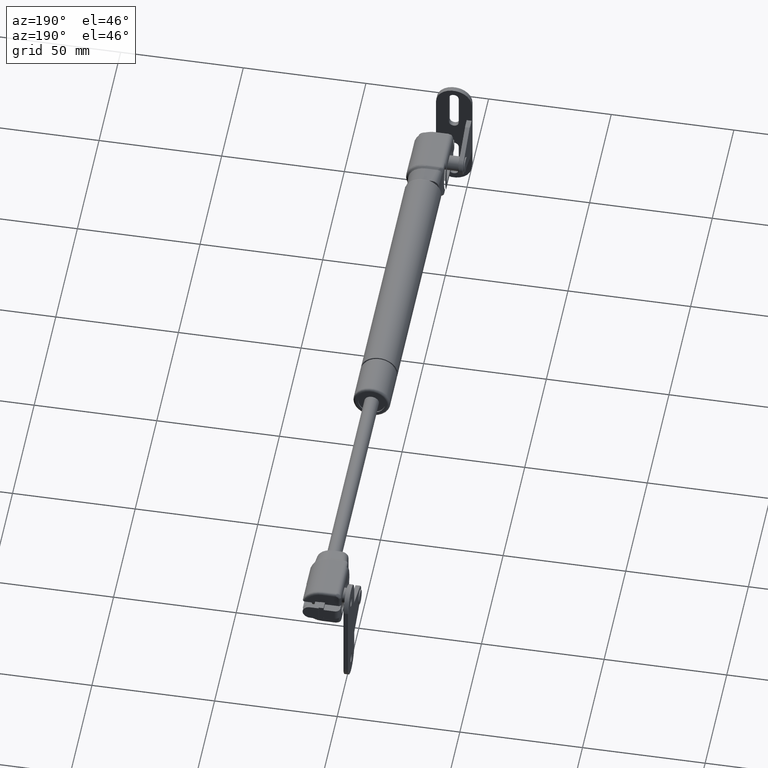
[diagram: clean part render]
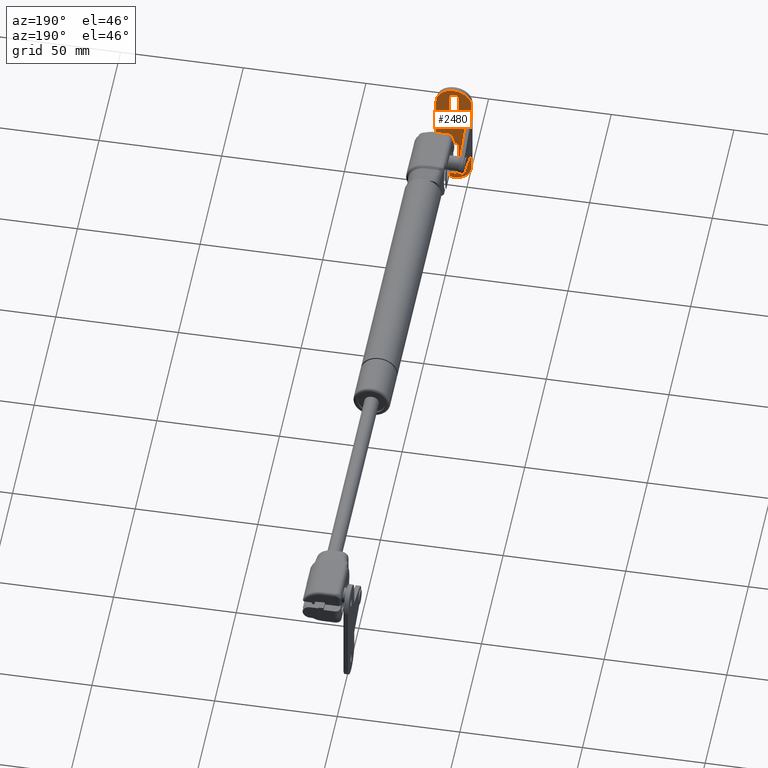
[diagram: same view with one face highlighted and labeled with its STEP entity id]
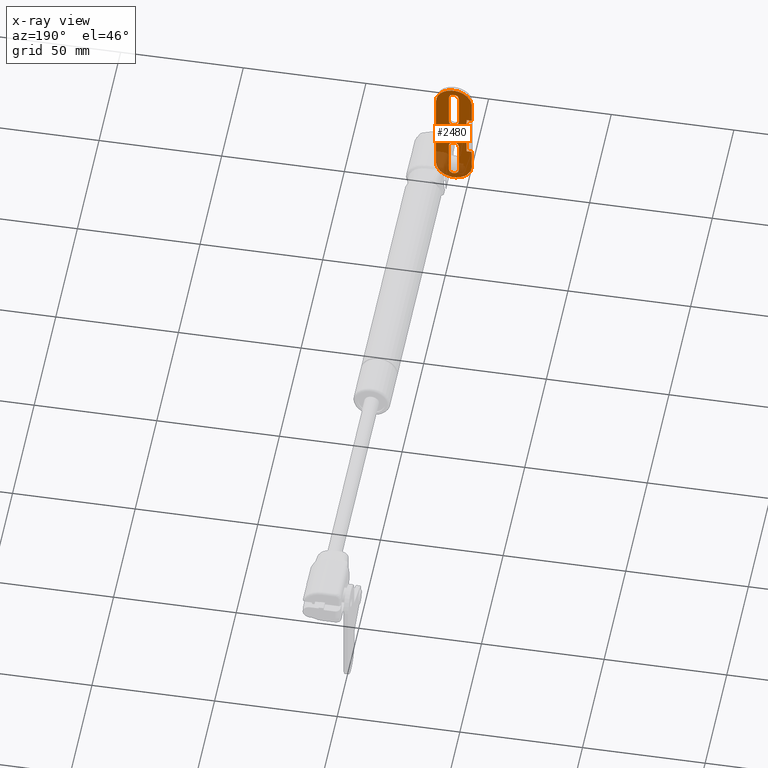
[diagram: x-ray of the same camera — body ghosted, the highlighted face saturated]
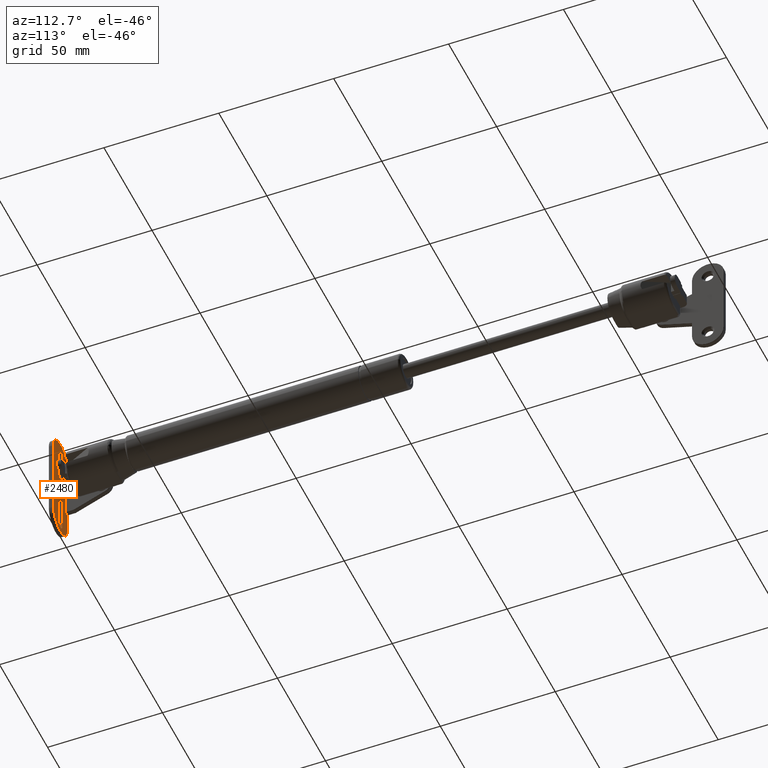
[diagram: same view with one face highlighted and labeled with its STEP entity id]
A machine part, auxiliary view. The second image highlights one B-rep face of the part: STEP entity #2480.
The next image is the same camera in x-ray: the body ghosted, the highlighted face saturated — about 14% of this face is hidden behind the body in this view.
A second angle (auxiliary view) of the same face is appended — the face is thin or edge-on in the first view.
In plain terms, the highlighted planar face has unit normal (0, -1, 0).
Its self-contained STEP definition (entity closure, byte-faithful):
#137=FACE_BOUND('',#424,.T.);
#138=FACE_BOUND('',#425,.T.);
#180=PLANE('',#2664);
#255=FACE_OUTER_BOUND('',#423,.T.);
#423=EDGE_LOOP('',(#1757,#1758,#1759,#1760,#1761,#1762,#1763,#1764));
#424=EDGE_LOOP('',(#1765,#1766,#1767,#1768));
#425=EDGE_LOOP('',(#1769,#1770,#1771,#1772));
#616=LINE('',#3720,#797);
#620=LINE('',#3731,#801);
#624=LINE('',#3744,#805);
#628=LINE('',#3755,#809);
#632=LINE('',#3768,#813);
#637=LINE('',#3783,#818);
#638=LINE('',#3784,#819);
#639=LINE('',#3786,#820);
#640=LINE('',#3788,#821);
#641=LINE('',#3789,#822);
#797=VECTOR('',#2947,13.7);
#801=VECTOR('',#2959,13.7);
#805=VECTOR('',#2971,13.7);
#809=VECTOR('',#2983,13.7);
#813=VECTOR('',#2995,35.5);
#818=VECTOR('',#3010,2.);
#819=VECTOR('',#3011,8.75);
#820=VECTOR('',#3012,8.75);
#821=VECTOR('',#3013,2.);
#822=VECTOR('',#3014,18.);
#976=CIRCLE('',#2641,2.);
#978=CIRCLE('',#2645,2.);
#980=CIRCLE('',#2649,2.);
#982=CIRCLE('',#2653,2.);
#984=CIRCLE('',#2657,7.25);
#986=CIRCLE('',#2661,7.25);
#1112=VERTEX_POINT('',#3710);
#1113=VERTEX_POINT('',#3711);
#1116=VERTEX_POINT('',#3719);
#1118=VERTEX_POINT('',#3725);
#1120=VERTEX_POINT('',#3734);
#1121=VERTEX_POINT('',#3735);
#1124=VERTEX_POINT('',#3743);
#1126=VERTEX_POINT('',#3749);
#1128=VERTEX_POINT('',#3758);
#1129=VERTEX_POINT('',#3759);
#1132=VERTEX_POINT('',#3767);
#1134=VERTEX_POINT('',#3773);
#1136=VERTEX_POINT('',#3781);
#1137=VERTEX_POINT('',#3782);
#1138=VERTEX_POINT('',#3785);
#1139=VERTEX_POINT('',#3787);
#1344=EDGE_CURVE('',#1112,#1113,#976,.T.);
#1348=EDGE_CURVE('',#1116,#1112,#616,.T.);
#1351=EDGE_CURVE('',#1118,#1116,#978,.T.);
#1354=EDGE_CURVE('',#1113,#1118,#620,.T.);
#1356=EDGE_CURVE('',#1120,#1121,#980,.T.);
#1360=EDGE_CURVE('',#1124,#1120,#624,.T.);
#1363=EDGE_CURVE('',#1126,#1124,#982,.T.);
#1366=EDGE_CURVE('',#1121,#1126,#628,.T.);
#1368=EDGE_CURVE('',#1128,#1129,#984,.T.);
#1372=EDGE_CURVE('',#1132,#1128,#632,.T.);
#1375=EDGE_CURVE('',#1134,#1132,#986,.T.);
#1379=EDGE_CURVE('',#1136,#1137,#637,.T.);
#1380=EDGE_CURVE('',#1129,#1137,#638,.T.);
#1381=EDGE_CURVE('',#1138,#1134,#639,.T.);
#1382=EDGE_CURVE('',#1139,#1138,#640,.T.);
#1383=EDGE_CURVE('',#1139,#1136,#641,.T.);
#1757=ORIENTED_EDGE('',*,*,#1379,.T.);
#1758=ORIENTED_EDGE('',*,*,#1380,.F.);
#1759=ORIENTED_EDGE('',*,*,#1368,.F.);
#1760=ORIENTED_EDGE('',*,*,#1372,.F.);
#1761=ORIENTED_EDGE('',*,*,#1375,.F.);
#1762=ORIENTED_EDGE('',*,*,#1381,.F.);
#1763=ORIENTED_EDGE('',*,*,#1382,.F.);
#1764=ORIENTED_EDGE('',*,*,#1383,.T.);
#1765=ORIENTED_EDGE('',*,*,#1344,.T.);
#1766=ORIENTED_EDGE('',*,*,#1354,.T.);
#1767=ORIENTED_EDGE('',*,*,#1351,.T.);
#1768=ORIENTED_EDGE('',*,*,#1348,.T.);
#1769=ORIENTED_EDGE('',*,*,#1356,.T.);
#1770=ORIENTED_EDGE('',*,*,#1366,.T.);
#1771=ORIENTED_EDGE('',*,*,#1363,.T.);
#1772=ORIENTED_EDGE('',*,*,#1360,.T.);
#2480=ADVANCED_FACE('',(#255,#137,#138),#180,.F.);
#2641=AXIS2_PLACEMENT_3D('',#3712,#2939,#2940);
#2645=AXIS2_PLACEMENT_3D('',#3726,#2952,#2953);
#2649=AXIS2_PLACEMENT_3D('',#3736,#2963,#2964);
#2653=AXIS2_PLACEMENT_3D('',#3750,#2976,#2977);
#2657=AXIS2_PLACEMENT_3D('',#3760,#2987,#2988);
#2661=AXIS2_PLACEMENT_3D('',#3774,#3000,#3001);
#2664=AXIS2_PLACEMENT_3D('',#3780,#3008,#3009);
#2939=DIRECTION('center_axis',(1.,0.,0.));
#2940=DIRECTION('ref_axis',(0.,1.,-2.22044604925031E-15));
#2947=DIRECTION('',(0.,-8.10381769799385E-17,-1.));
#2952=DIRECTION('center_axis',(1.,0.,0.));
#2953=DIRECTION('ref_axis',(0.,-1.,0.));
#2959=DIRECTION('',(0.,0.,1.));
#2963=DIRECTION('center_axis',(1.,0.,0.));
#2964=DIRECTION('ref_axis',(0.,1.,0.));
#2971=DIRECTION('',(0.,0.,1.));
#2976=DIRECTION('center_axis',(1.,0.,0.));
#2977=DIRECTION('ref_axis',(0.,-1.,-1.38777878078145E-16));
#2983=DIRECTION('',(0.,8.10381769799384E-17,-1.));
#2987=DIRECTION('center_axis',(1.,0.,0.));
#2988=DIRECTION('ref_axis',(0.,1.,9.18805261758749E-16));
#2995=DIRECTION('',(0.,-1.2509555207044E-16,1.));
#3000=DIRECTION('center_axis',(1.,0.,0.));
#3001=DIRECTION('ref_axis',(0.,-1.,-6.125368411725E-16));
#3008=DIRECTION('center_axis',(1.,0.,0.));
#3009=DIRECTION('ref_axis',(0.,0.,-1.));
#3010=DIRECTION('',(0.,-1.,0.));
#3011=DIRECTION('',(0.,1.8764332810566E-16,-1.));
#3012=DIRECTION('',(0.,1.8764332810566E-16,-1.));
#3013=DIRECTION('',(0.,-1.,0.));
#3014=DIRECTION('',(0.,0.,1.));
#3710=CARTESIAN_POINT('',(16.,3.25,-20.6));
#3711=CARTESIAN_POINT('',(16.,7.25,-20.6));
#3712=CARTESIAN_POINT('Origin',(16.,5.25,-20.6));
#3719=CARTESIAN_POINT('',(16.,3.25,-6.9));
#3720=CARTESIAN_POINT('',(16.,3.25,-3.45));
#3725=CARTESIAN_POINT('',(16.,7.25,-6.90000000000001));
#3726=CARTESIAN_POINT('Origin',(16.,5.25,-6.90000000000001));
#3731=CARTESIAN_POINT('',(16.,7.25,-10.3));
#3734=CARTESIAN_POINT('',(16.,7.25,20.6));
#3735=CARTESIAN_POINT('',(16.,3.25,20.6));
#3736=CARTESIAN_POINT('Origin',(16.,5.25,20.6));
#3743=CARTESIAN_POINT('',(16.,7.25,6.9));
#3744=CARTESIAN_POINT('',(16.,7.25,3.45));
#3749=CARTESIAN_POINT('',(16.,3.25,6.9));
#3750=CARTESIAN_POINT('Origin',(16.,5.25,6.9));
#3755=CARTESIAN_POINT('',(16.,3.25,10.3));
#3758=CARTESIAN_POINT('',(16.,12.5,17.75));
#3759=CARTESIAN_POINT('',(16.,-2.,17.75));
#3760=CARTESIAN_POINT('Origin',(16.,5.25,17.75));
#3767=CARTESIAN_POINT('',(16.,12.5,-17.75));
#3768=CARTESIAN_POINT('',(16.,12.5,-17.75));
#3773=CARTESIAN_POINT('',(16.,-2.,-17.75));
#3774=CARTESIAN_POINT('Origin',(16.,5.25,-17.75));
#3780=CARTESIAN_POINT('Origin',(16.,5.25,-3.16709434814959E-15));
#3781=CARTESIAN_POINT('',(16.,0.,9.));
#3782=CARTESIAN_POINT('',(16.,-2.,9.));
#3783=CARTESIAN_POINT('',(16.,0.,9.));
#3784=CARTESIAN_POINT('',(16.,-2.,17.75));
#3785=CARTESIAN_POINT('',(16.,-2.,-9.));
#3786=CARTESIAN_POINT('',(16.,-2.,17.75));
#3787=CARTESIAN_POINT('',(16.,0.,-9.));
#3788=CARTESIAN_POINT('',(16.,0.,-9.));
#3789=CARTESIAN_POINT('',(16.,0.,-9.));